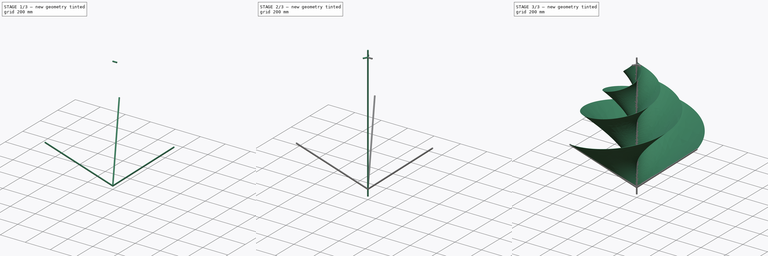
[diagram: build sequence overview — one tinted view per stage of 3, left to right]
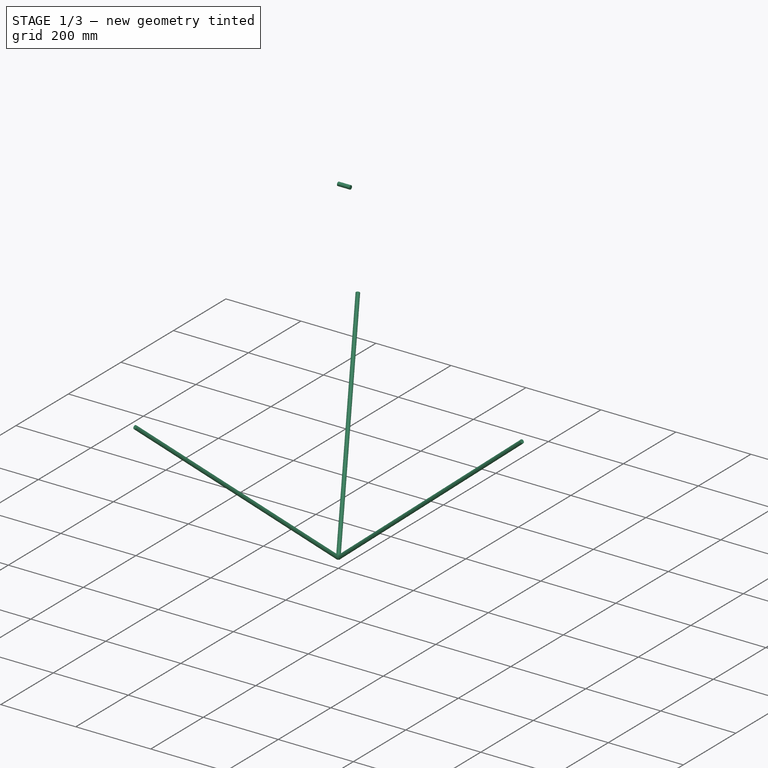
[diagram: stage 1 of 3 — iso view after this stage's code; geometry added in this stage tinted green]
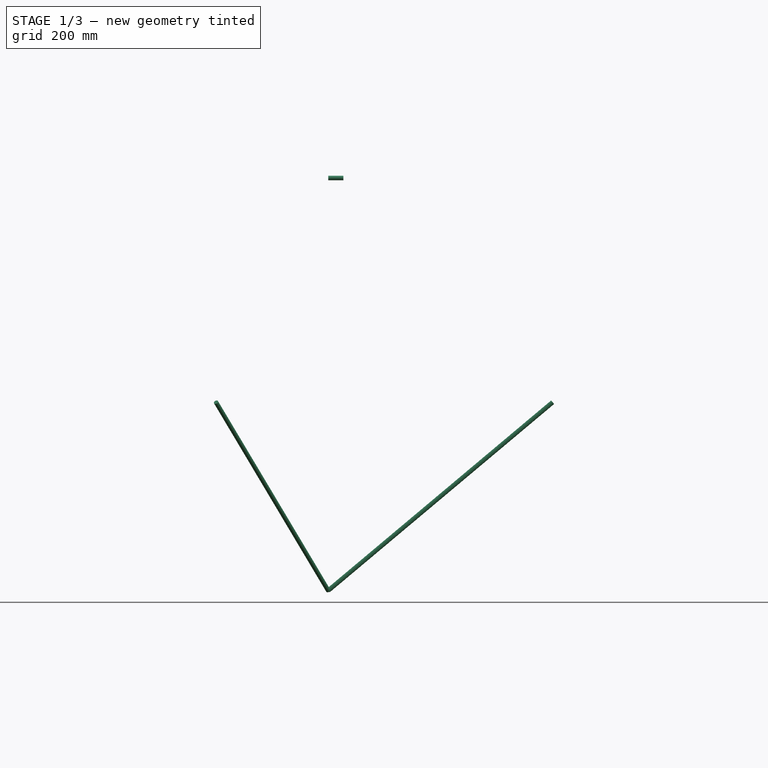
[diagram: stage 1 of 3 — front view after this stage's code; geometry added in this stage tinted green]
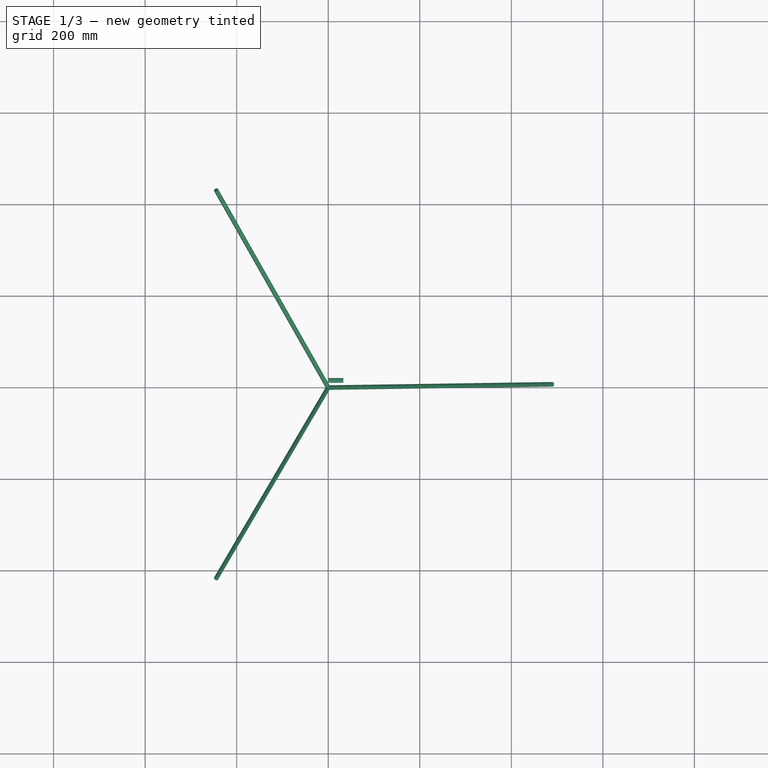
[diagram: stage 1 of 3 — top view after this stage's code; geometry added in this stage tinted green]
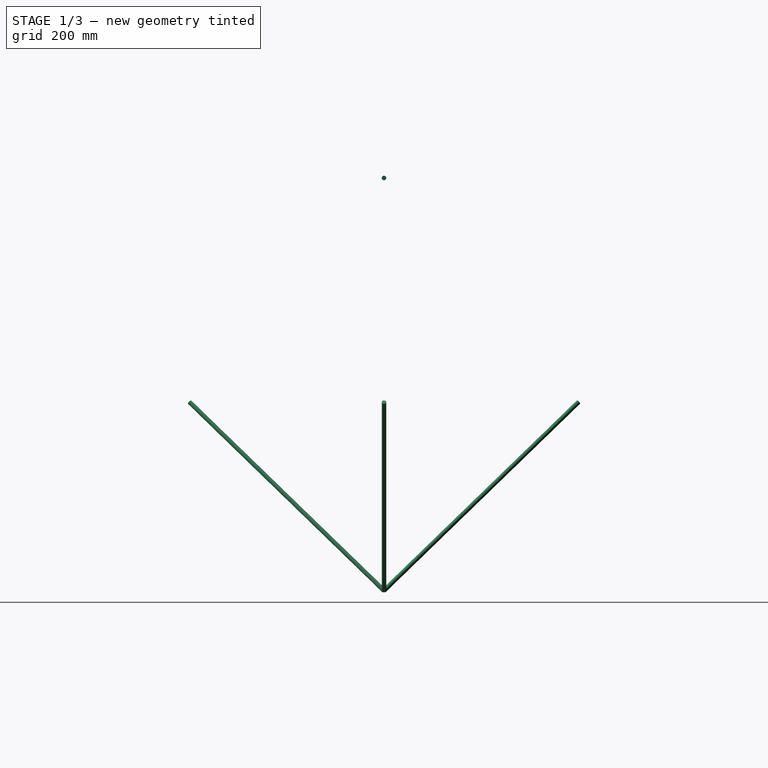
[diagram: stage 1 of 3 — right view after this stage's code; geometry added in this stage tinted green]
FCSTD DOCUMENT  (FreeCAD 0.20R29410 (Git))
Label: HELICE POSTA CON AGARRE
License: All rights reserved
LicenseURL: http://en.wikipedia.org/wiki/All_rights_reserved
objects: Sketcher::SketchObject×6, Part::FeaturePython×3, Part::Sweep×2, Part::Helix×1, Part::RuledSurface×1, Part::Offset×1, Part::Fillet×1, Part::Cylinder×1
note: 16 computed .brp shape members not serialized (recipe doc carries the construction recipe); baked Part::Feature solids carry a one-line shape summary decoded from their .brp

FEATURE [Sketcher::SketchObject] Sketch
  ExternalGeometry = -> [Helix]
  FullyConstrained = true
  MapMode = 2
  sketch-geometry (2):
    g0: Circle CenterX=0 CenterY=0 CenterZ=0 NormalX=0 NormalY=0 NormalZ=1 AngleXU=0 Radius=5
    g1: LineSegment StartX=33.0676 StartY=0 StartZ=0 EndX=0 EndY=0 EndZ=0
  constraints (4):
    c: Coincident(g0,g-1)
    c: Diameter(g0) = 10
    c: Coincident(g1,g-3)
    c: Coincident(g1,g0)
FEATURE [Sketcher::SketchObject] Sketch002
  ExternalGeometry = -> [Helix]
  FullyConstrained = true
  Placement = pos=(0,0,0) rot=(0.57735,0.57735,0.57735;2.0944rad)
  sketch-geometry (1):
    g0: Circle CenterX=0 CenterY=490 CenterZ=0 NormalX=0 NormalY=0 NormalZ=1 AngleXU=0 Radius=5
  constraints (2):
    c: Coincident(g0,g-3)
    c: Diameter(g0) = 10
FEATURE [Part::Cylinder] Cylinder  label="Cilindro"
  Angle = 360
  AttacherType = Attacher::AttachEngine3D
  FirstAngle = 0
  Height = 640
  Placement = pos=(0,0,-411.16) rot=(0,1,0;0.872665rad)
  Radius = 5
  SecondAngle = 0
FEATURE [Part::Sweep] Sweep001
  Frenet = false
  Sections = -> [Sketch002]
  Solid = true
  Spine = -> Sketch [Edge2]
  Transition = 1
FEATURE [Part::FeaturePython] Array002  # Draft array (typed FeaturePython)
  AlwaysSyncPlacement = false
  Angle = 360
  ArrayType = 1
  Axis = (0,0,1)
  Base = -> Cylinder
  Center = (0,0,0)
  Count = 3
  ExpandArray = false
  Fuse = true
  IntervalAxis = (0,0,0)
  IntervalX = (50,0,0)
  IntervalY = (0,50,0)
  IntervalZ = (0,0,50)
  NumberCircles = 3
  NumberPolar = 3
  NumberX = 2
  NumberY = 2
  NumberZ = 1
  PlacementList = 3 placements: [(0,0,-411.16),(0,0,-411.16),(0,0,-411.16)]
  RadialDistance = 50
  ScaleList = (3) [(1,1,1),(1,1,1),(1,1,1)]
  Symmetry = 1
  TangentialDistance = 25
FEATURE [Sketcher::SketchObject] Sketch005
  ExternalGeometry = -> [Helix]
  FullyConstrained = true
  Placement = pos=(0,0,0) rot=(1,0,0;1.5708rad)
  sketch-geometry (1):
    g0: Circle CenterX=490 CenterY=0 CenterZ=0 NormalX=0 NormalY=0 NormalZ=1 AngleXU=0 Radius=5
  constraints (2):
    c: Coincident(g0,g-3)
    c: Diameter(g0) = 10
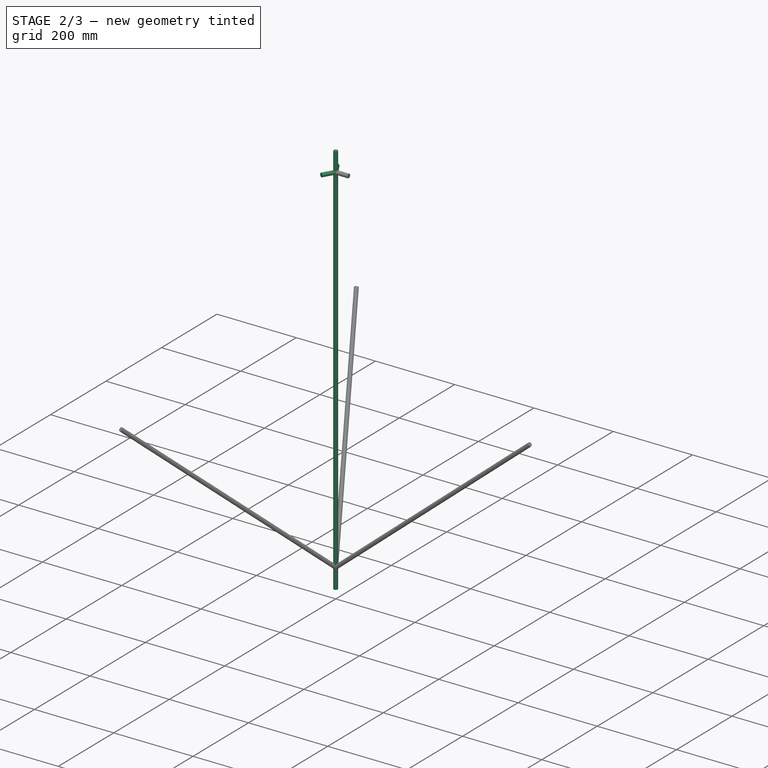
[diagram: stage 2 of 3 — iso view after this stage's code; geometry added in this stage tinted green]
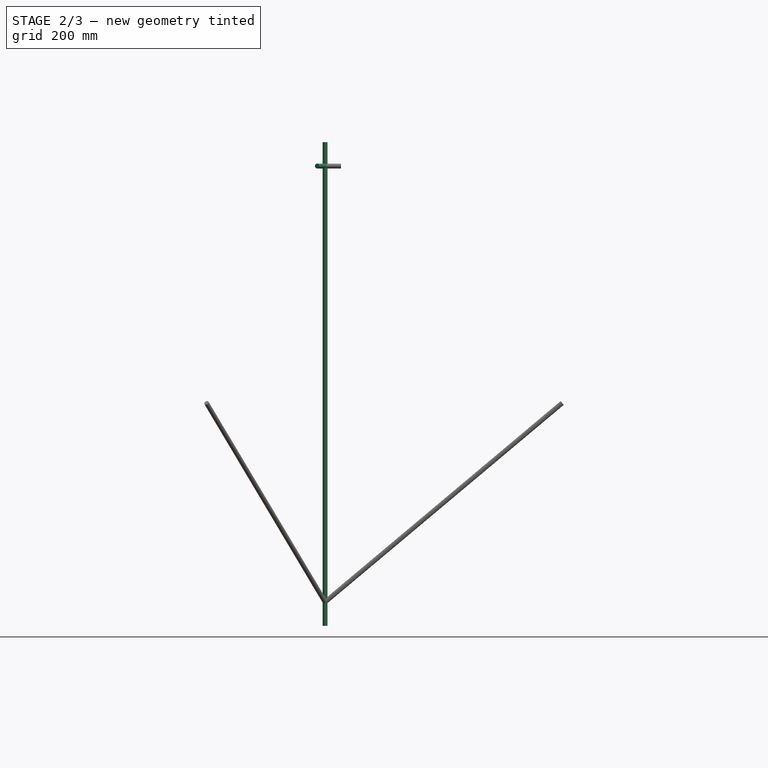
[diagram: stage 2 of 3 — front view after this stage's code; geometry added in this stage tinted green]
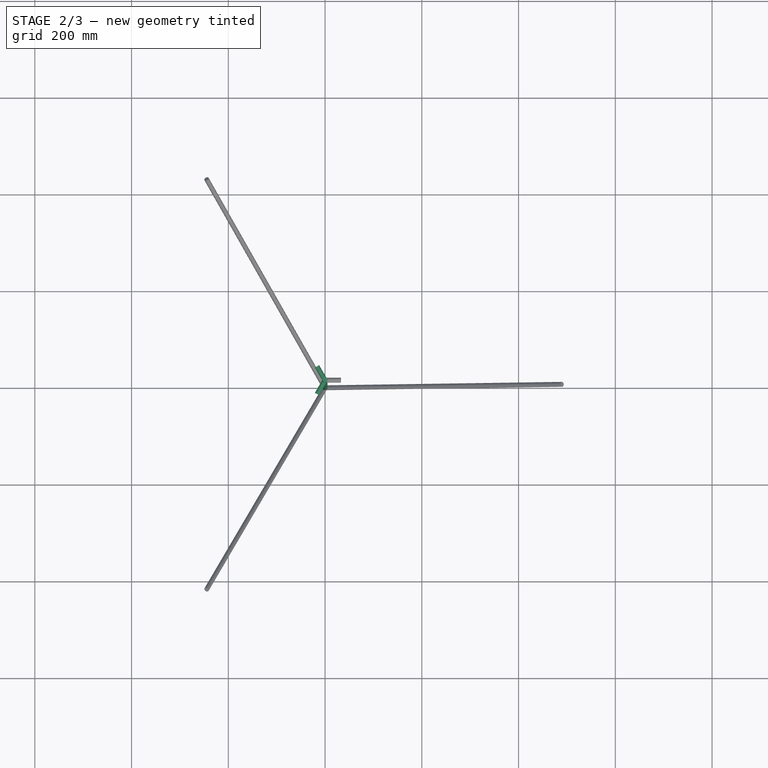
[diagram: stage 2 of 3 — top view after this stage's code; geometry added in this stage tinted green]
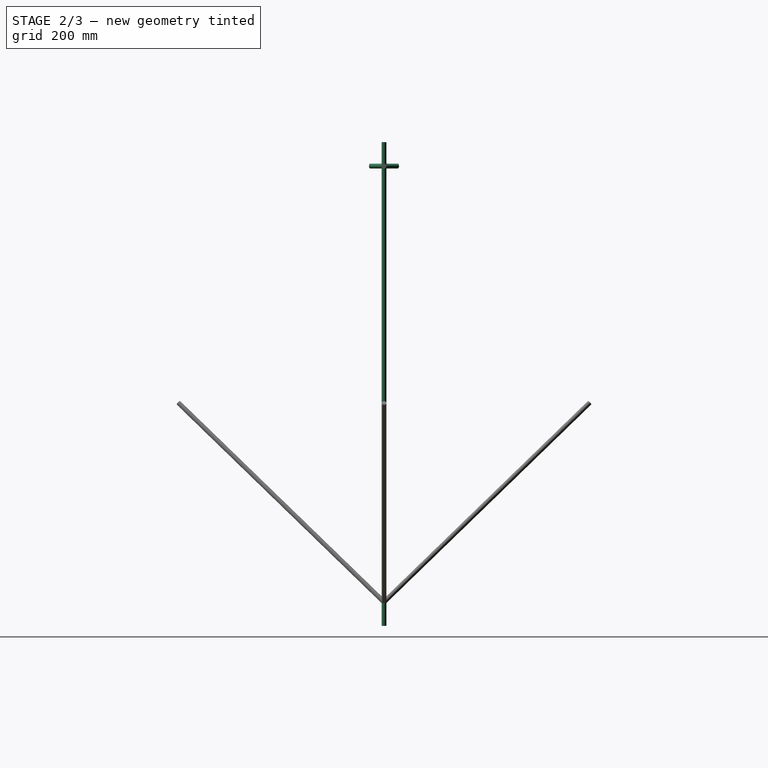
[diagram: stage 2 of 3 — right view after this stage's code; geometry added in this stage tinted green]
FEATURE [Sketcher::SketchObject] Sketch003
  FullyConstrained = true
  sketch-geometry (1):
    g0: Circle CenterX=0 CenterY=0 CenterZ=0 NormalX=0 NormalY=0 NormalZ=1 AngleXU=0 Radius=5
  constraints (2):
    c: Coincident(g0,g-1)
    c: Diameter(g0) = 10
FEATURE [Sketcher::SketchObject] Sketch004
  ExternalGeometry = -> [Helix,Sketch001]
  FullyConstrained = true
  Placement = pos=(0,0,0) rot=(1,0,0;1.5708rad)
  sketch-geometry (1):
    g0: LineSegment StartX=0 StartY=539.42 StartZ=0 EndX=0 EndY=-460.579 EndZ=0
  constraints (4):
    c: Vertical(g0)
    c: DistanceY(g-3,g0) = 49.42
    c: DistanceY(g0,g-4) = 49.42
    c: Vertical(g0,g-4)
FEATURE [Part::Sweep] Sweep
  Frenet = false
  Sections = -> [Sketch003]
  Solid = true
  Spine = -> Sketch004 [Edge1]
  Transition = 1
FEATURE [Part::FeaturePython] Array001  # Draft array (typed FeaturePython)
  AlwaysSyncPlacement = false
  Angle = 360
  ArrayType = 1
  Axis = (0,0,1)
  Base = -> Sweep001
  Center = (0,0,0)
  Count = 3
  ExpandArray = false
  Fuse = true
  IntervalAxis = (0,0,0)
  IntervalX = (50,0,0)
  IntervalY = (0,50,0)
  IntervalZ = (0,0,50)
  NumberCircles = 3
  NumberPolar = 3
  NumberX = 2
  NumberY = 2
  NumberZ = 1
  PlacementList = 3 placements: [(0,0,0),(0,0,0),(0,0,0)]
  RadialDistance = 50
  ScaleList = (3) [(1,1,1),(1,1,1),(1,1,1)]
  Symmetry = 1
  TangentialDistance = 25
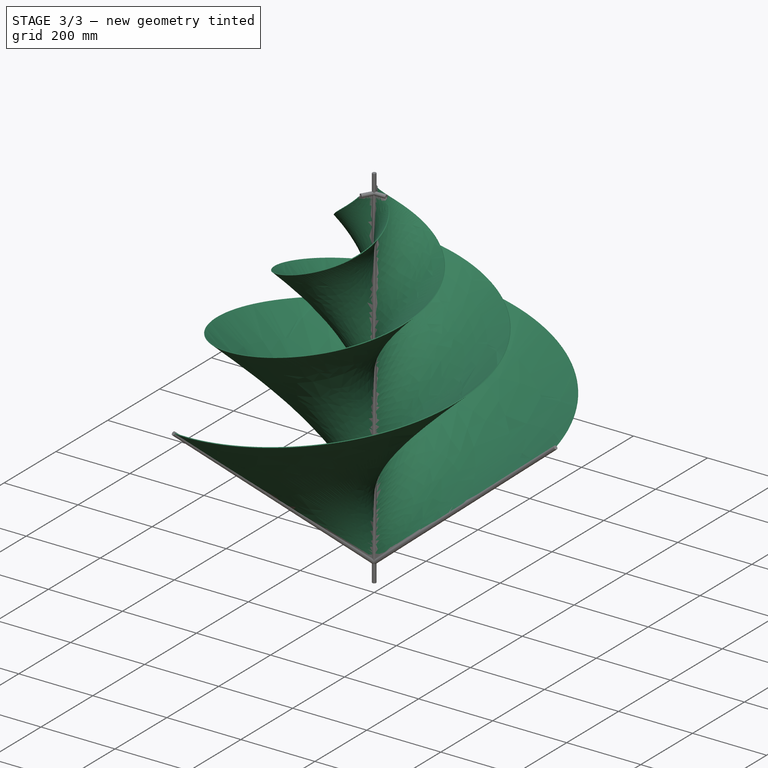
[diagram: stage 3 of 3 — iso view after this stage's code; geometry added in this stage tinted green]
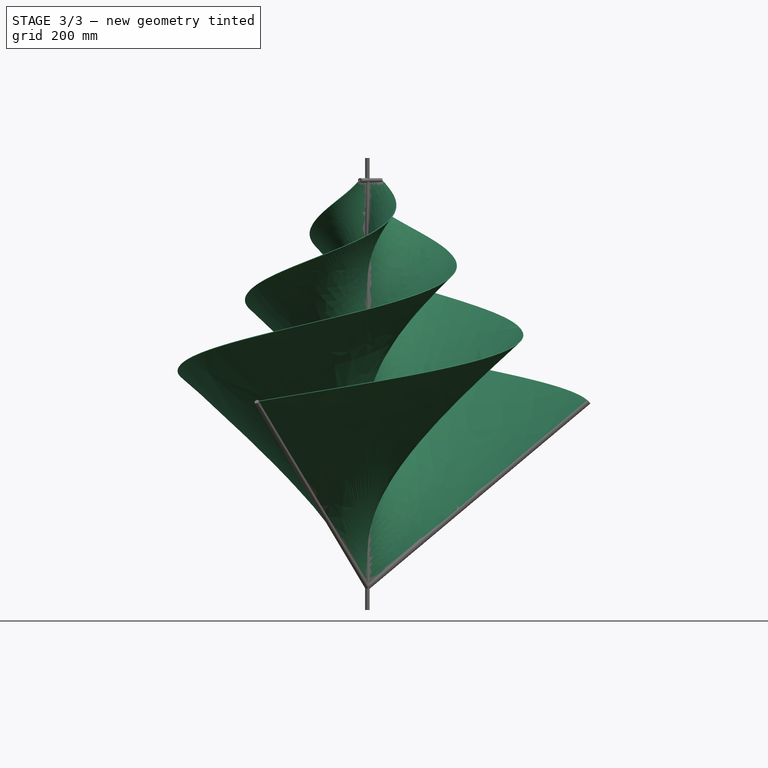
[diagram: stage 3 of 3 — front view after this stage's code; geometry added in this stage tinted green]
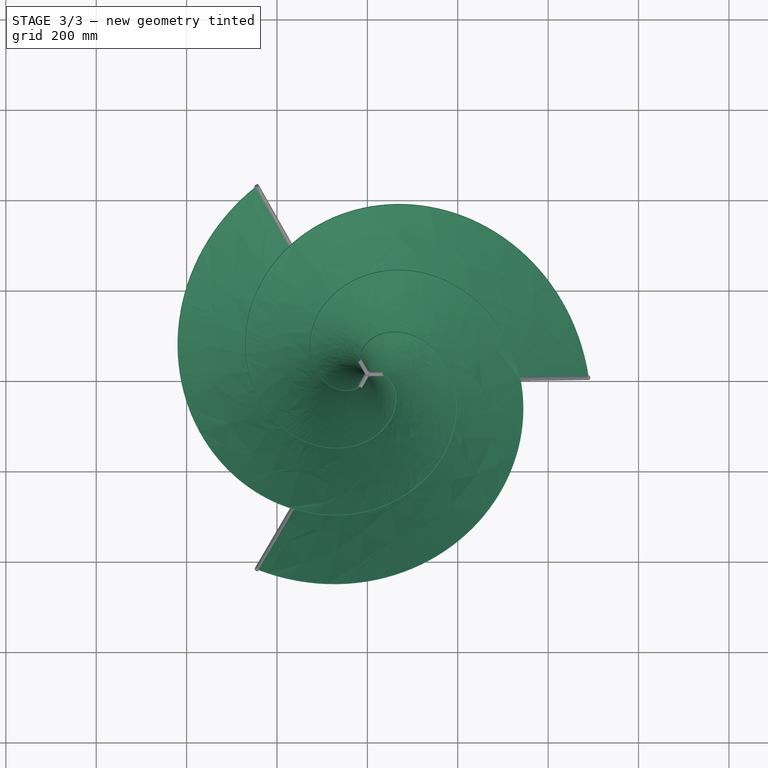
[diagram: stage 3 of 3 — top view after this stage's code; geometry added in this stage tinted green]
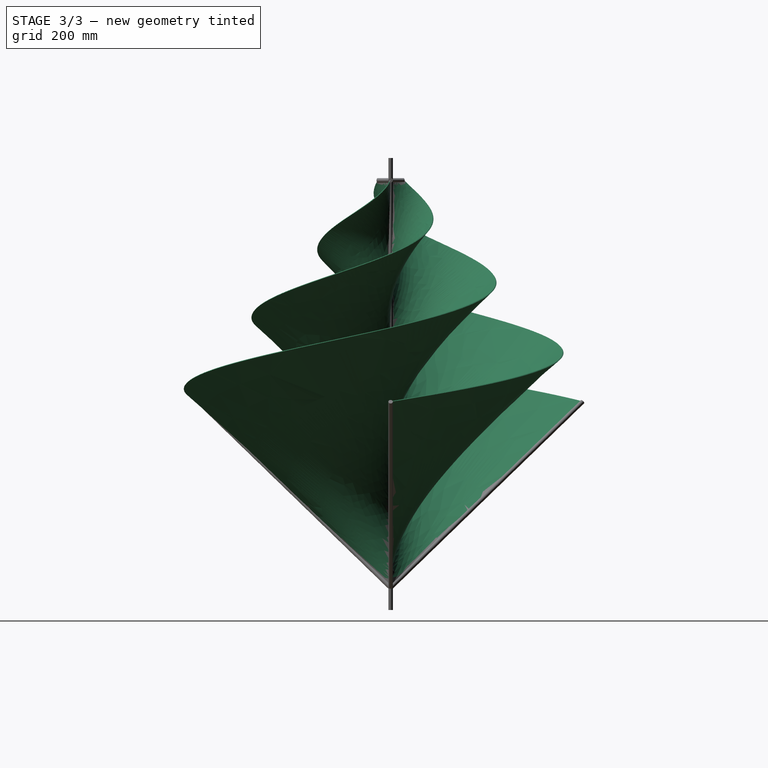
[diagram: stage 3 of 3 — right view after this stage's code; geometry added in this stage tinted green]
FEATURE [Part::Helix] Helix  label="Hélice"
  Angle = -43
  AttacherType = Attacher::AttachEngine3D
  Height = 490
  LocalCoord = 0
  Pitch = 490
  Radius = 490
  SegmentLength = 0
  Style = 1
FEATURE [Sketcher::SketchObject] Sketch001
  ExternalGeometry = -> [Helix]
  FullyConstrained = true
  Placement = pos=(0,0,0) rot=(1,0,0;1.5708rad)
  sketch-geometry (4):
    g0: LineSegment StartX=0 StartY=490 StartZ=0 EndX=0 EndY=-411.159 EndZ=0
    g1: LineSegment StartX=490 StartY=0 StartZ=0 EndX=0 EndY=-411.159 EndZ=0
    g2: LineSegment StartX=490 StartY=0 StartZ=0 EndX=0 EndY=-411.159 EndZ=0
    g3: Circle CenterX=490 CenterY=0 CenterZ=0 NormalX=0 NormalY=0 NormalZ=1 AngleXU=0 Radius=5
  constraints (10):
    c: PointOnObject(g0,g-2)
    c: Horizontal(g0,g-3)
    c: Vertical(g0)
    c: Coincident(g1,g-4)
    c: Coincident(g1,g0)
    c: Angle(g1,g0) = 0.872665
    c: Coincident(g2,g1)
    c: Coincident(g2,g0)
    c: Coincident(g3,g2)
    c: Diameter(g3) = 10
FEATURE [Part::RuledSurface] Ruled_Surface
  Curve1 = -> Sketch001 [Edge1]
  Curve2 = -> Helix [Edge1]
  Orientation = 0
FEATURE [Part::Offset] Offset
  Fill = true
  Intersection = false
  Join = 0
  Mode = 0
  SelfIntersection = false
  Source = -> Ruled_Surface
  Value = 2
FEATURE [Part::Fillet] Fillet
  Base = -> Offset
  Edges = 1 edges r=1: [Edge8]
FEATURE [Part::FeaturePython] Array  # Draft array (typed FeaturePython)
  AlwaysSyncPlacement = false
  Angle = 360
  ArrayType = 1
  Axis = (0,0,1)
  Base = -> Fillet
  Center = (0,0,0)
  Count = 3
  ExpandArray = false
  Fuse = true
  IntervalAxis = (0,0,0)
  IntervalX = (50,0,0)
  IntervalY = (0,50,0)
  IntervalZ = (0,0,50)
  NumberCircles = 3
  NumberPolar = 3
  NumberX = 2
  NumberY = 2
  NumberZ = 1
  PlacementList = 3 placements: [(0,0,0),(0,0,0),(0,0,0)]
  RadialDistance = 50
  ScaleList = (3) [(1,1,1),(1,1,1),(1,1,1)]
  Symmetry = 1
  TangentialDistance = 25
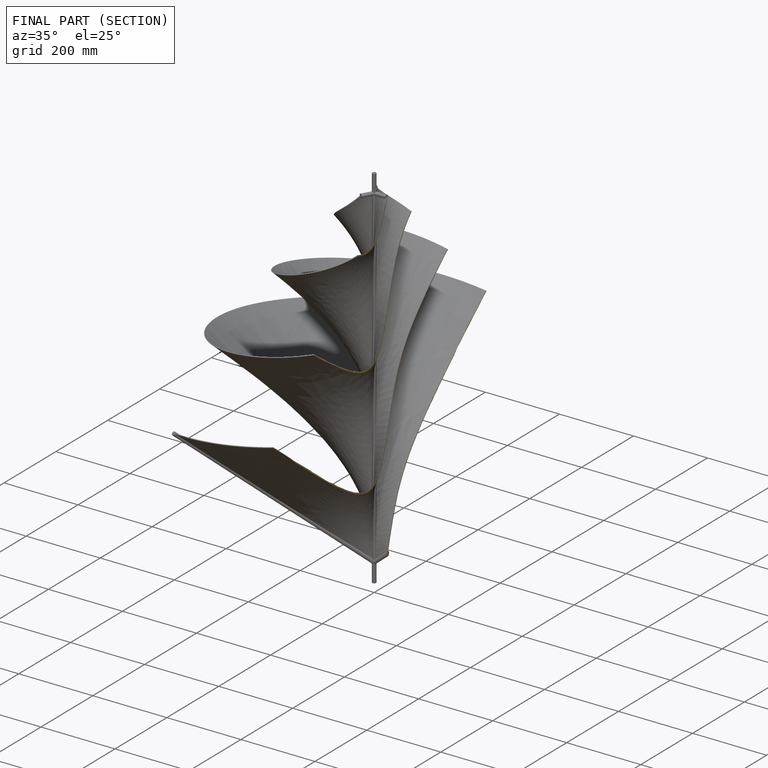
[diagram: finished part — half-section view (interior)]
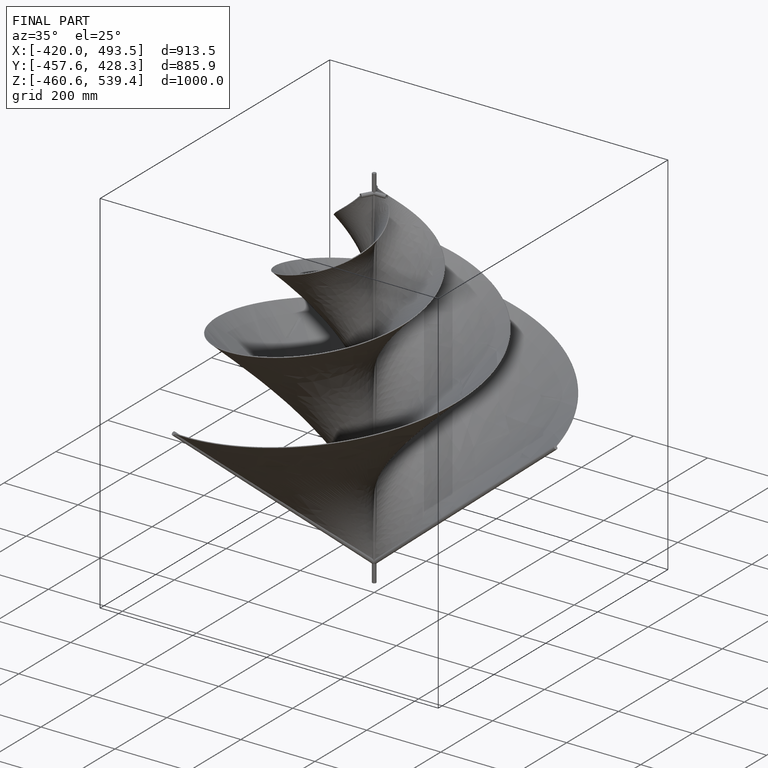
[diagram: finished part — iso view with bounding-box wireframe]
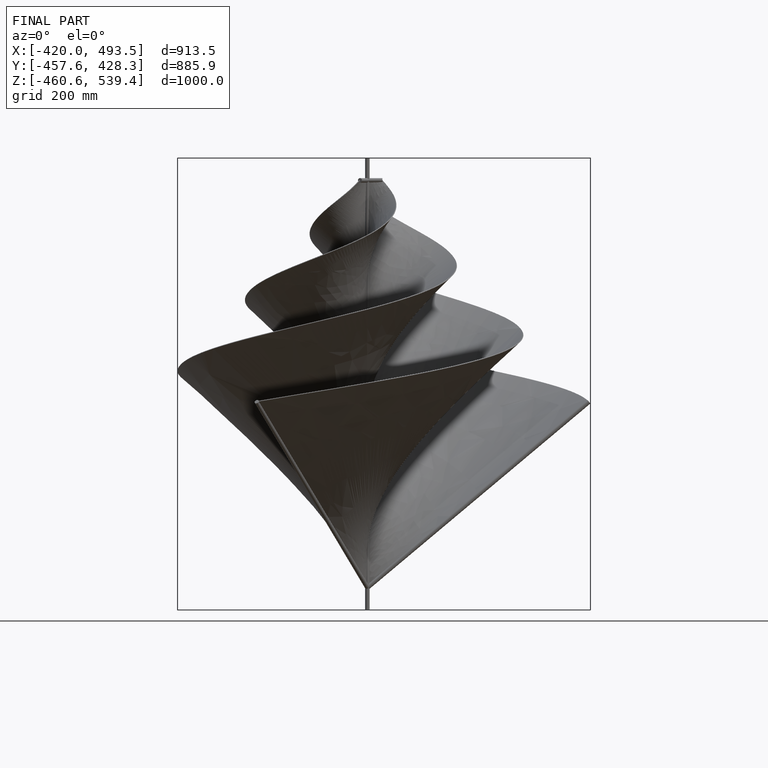
[diagram: finished part — front view with bounding-box wireframe]
